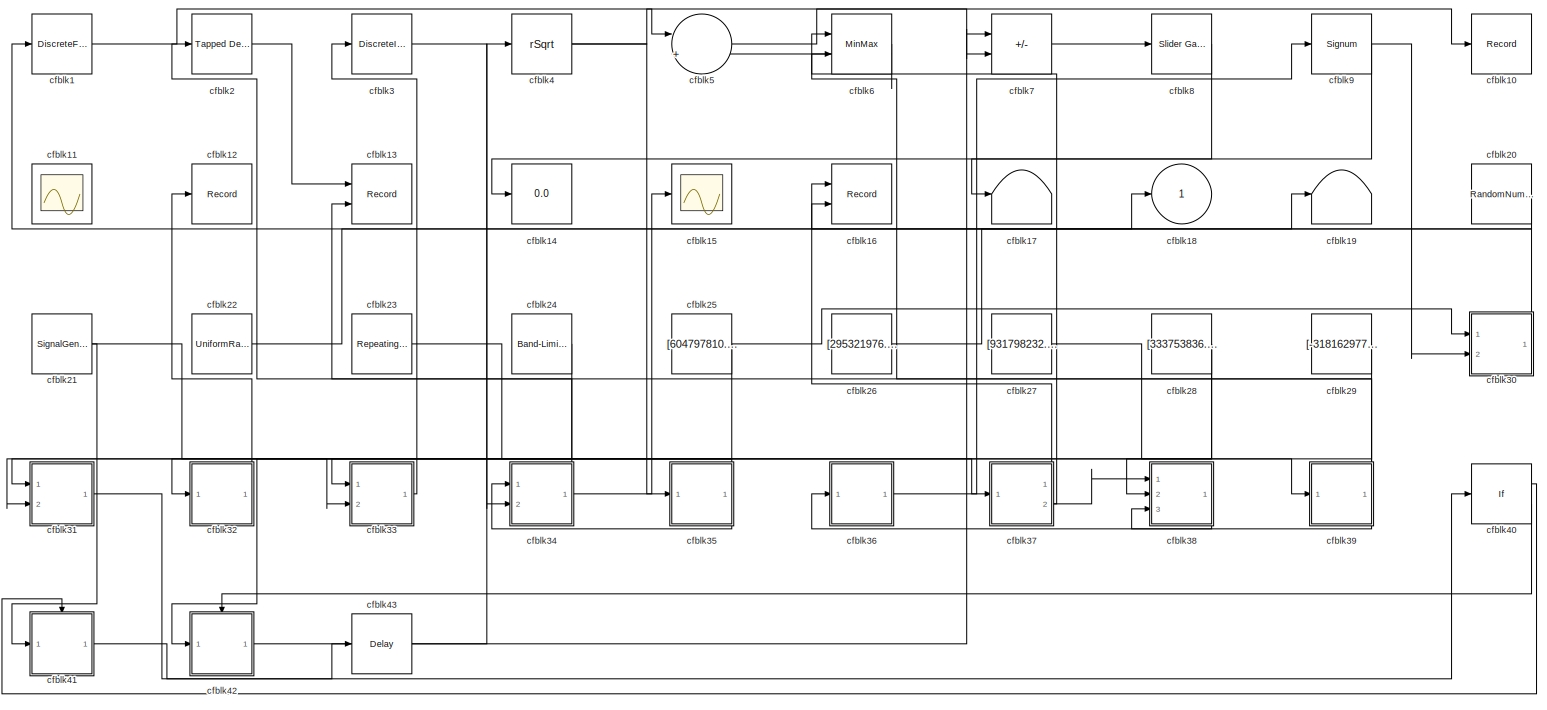
[diagram: root canvas - part 1/1, most of the canvas]
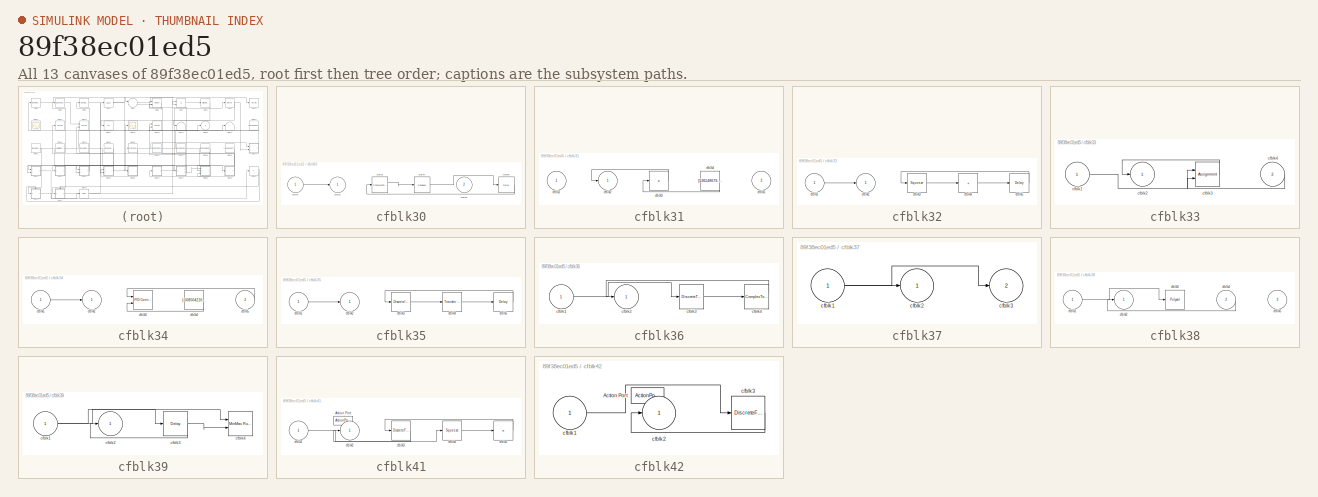
[diagram: thumbnail index - all 13 canvases of the model, root first then tree order]
MODEL slx_89f38ec01ed5
KIND model
CONFIG AbsTol = auto
CONFIG EnableMultiTasking = off
CONFIG FixedStep = auto
CONFIG MaxStep = auto
CONFIG MinStep = auto
CONFIG RelTol = 1e-3
CONFIG SampleTimeConstraint = Unconstrained
CONFIG SolverName = VariableStepAuto
CONFIG StartTime = 0.0
CONFIG StopTime = 10.0
BLOCK [DiscreteFir] cfblk1
  InputPortMap = u0
  OutputPortMap = o0
  Ports = [1, 1]
  SampleTime = 1
BLOCK [Record] cfblk10
  FileSettingsInternal = {"entries":[{"content":{"excelSettings":{"content":{},"type":"Streamout.ExcelSettings"}},"type":"Streamout.FileSettingStorage","uuid":"9136f186-ec9e-49fd-8053-90c4ae60cd6f"}],"packageUris":["http://schema.mathworks.com/mf0/streamout_blocks/R2020a"],"version":"1.0"}
  Ports = [1]
  SignalsInternal = {"entries":[{"content":{"signals":[{"content":{"blockPath":["sampleModel212/cfblk10"],"channel":[],"dimensions":[1],"domain":"sampleModel212/cfblk10","lineColor":"#edb120","plots":[1],"port":1,"sid":[""],"signalID":8232,"signalName":"cfblk5"},"type":"RecordBlkView.Signal","uuid":"3d6c6ed9-3216-4515-a2b3-ec71c8580300"}]},"type":"RecordBlkView.InputSignals","uuid":"6f53bf0b-d229-4304-8eb9-cf2f878992...<+96ch>
  VisualizationBindings = {"sparklinesplugin":{"info":[{"bindingParametersList":[],"subplotID":1}]}}
BLOCK [Scope] cfblk11
  Floating = on
  NumInputPorts = 1
  Ports = []
BLOCK [Record] cfblk12
  FileSettingsInternal = {"entries":[{"content":{"excelSettings":{"content":{},"type":"Streamout.ExcelSettings"}},"type":"Streamout.FileSettingStorage","uuid":"6ba16359-3d74-4ac6-a319-7b95d1bddcf9"}],"packageUris":["http://schema.mathworks.com/mf0/streamout_blocks/R2020a"],"version":"1.0"}
  Ports = [1]
  SignalsInternal = {"entries":[{"content":{"signals":[{"content":{"blockPath":["sampleModel212/cfblk12"],"channel":[],"dimensions":[1],"domain":"sampleModel212/cfblk12","lineColor":"#139fff","plots":[1],"port":1,"sid":[""],"signalID":8252,"signalName":"cfblk32"},"type":"RecordBlkView.Signal","uuid":"2d56ea30-9116-46ed-9e82-5e82888dbfa9"}]},"type":"RecordBlkView.InputSignals","uuid":"56d7414f-cbe6-4e07-9f56-36ce9f4fe...<+97ch>
  VisualizationBindings = {"sparklinesplugin":{"info":[{"bindingParametersList":[],"subplotID":1}]}}
BLOCK [Record] cfblk13
  CompatibilityTag = XY
  FileSettingsInternal = {"entries":[{"content":{"excelSettings":{"content":{},"type":"Streamout.ExcelSettings"}},"type":"Streamout.FileSettingStorage","uuid":"0acae2d6-ee60-4856-b366-a0806cd00a70"}],"packageUris":["http://schema.mathworks.com/mf0/streamout_blocks/R2020a"],"version":"1.0"}
  Layout = [1 1]
  Ports = [2]
  SignalsInternal = {"entries":[{"content":{"signals":[{"content":{"blockPath":["sampleModel212/cfblk13"],"channel":[],"dimensions":[1],"domain":"sampleModel212/cfblk13","lineColor":"#a2142f","plots":[1],"port":1,"sid":[""],"signalID":8236,"signalName":"cfblk2"},"type":"RecordBlkView.Signal","uuid":"529bd515-27fc-4e1a-94ea-2d07532aa9c1"},{"content":{"blockPath":["sampleModel212/cfblk13"],"channel":[],"dimensions":[1]...<+382ch>
  VisualizationBindings = {"xyplotplugin":{"info":[{"series":[{"bindingParametersList":[{"parameter":"X-Axis","signalID":8236,"signalName":"cfblk2"},{"parameter":"Y-Axis","signalID":8240,"signalName":"cfblk39"}],"seriesID":42465}],"subplotID":1}]}}
BLOCK [Display] cfblk14
  Decimation = 1
  Ports = [1]
BLOCK [Scope] cfblk15
  Floating = off
  NumInputPorts = 1
  Ports = [1]
BLOCK [Record] cfblk16
  CompatibilityTag = XY
  FileSettingsInternal = {"entries":[{"content":{"excelSettings":{"content":{},"type":"Streamout.ExcelSettings"}},"type":"Streamout.FileSettingStorage","uuid":"ca503a4a-a96d-43a1-9ebc-70d0128dd941"}],"packageUris":["http://schema.mathworks.com/mf0/streamout_blocks/R2020a"],"version":"1.0"}
  Layout = [1 1]
  Ports = [2]
  SignalsInternal = {"entries":[{"content":{"signals":[{"content":{"blockPath":["sampleModel212/cfblk16"],"channel":[],"dimensions":[1],"domain":"sampleModel212/cfblk16","lineColor":"#a2142f","plots":[1],"port":1,"sid":[""],"signalID":8244,"signalName":"cfblk37:1"},"type":"RecordBlkView.Signal","uuid":"e63eec24-58ba-4f65-805e-17e2aa971a90"},{"content":{"blockPath":["sampleModel212/cfblk16"],"channel":[],"dimensions":...<+385ch>
  VisualizationBindings = {"xyplotplugin":{"info":[{"series":[{"bindingParametersList":[{"parameter":"X-Axis","signalID":8244,"signalName":"cfblk37:1"},{"parameter":"Y-Axis","signalID":8248,"signalName":"cfblk20"}],"seriesID":43597}],"subplotID":1}]}}
BLOCK [Terminator] cfblk17
BLOCK [Outport] cfblk18
BLOCK [Terminator] cfblk19
BLOCK [Reference] cfblk2  REF=simulink/Discrete/Tapped Delay
  Ports = [1, 1]
  SourceBlock = simulink/Discrete/Tapped Delay
  SourceProductBaseCode = SL
  SourceType = Tapped Delay Line
BLOCK [RandomNumber] cfblk20
  Mean = [74771.324273]
  SampleTime = 0.1
  Seed = [211738287.000000]
  Variance = [43680.592014]
BLOCK [SignalGenerator] cfblk21
  Amplitude = [-349925656.261152]
  Ports = [0, 1]
  WaveForm = square
BLOCK [UniformRandomNumber] cfblk22
  Maximum = [1225243770.020049]
  Minimum = [-1543428115.464297]
  SampleTime = 0.1
  Seed = [69964703.000000]
BLOCK [Reference] cfblk23  REF=simulink/Sources/Repeating
Sequence
Interpolated
  Ports = [0, 1]
  SourceBlock = simulink/Sources/Repeating\nSequence\nInterpolated
  SourceProductBaseCode = SL
  SourceType = Repeating Sequence Interpolated
BLOCK [Reference] cfblk24  REF=simulink/Sources/Band-Limited
White Noise
  Ports = [0, 1]
  SourceBlock = simulink/Sources/Band-Limited\nWhite Noise
  SourceProductBaseCode = SL
  SourceType = Band-Limited White Noise.
BLOCK [Constant] cfblk25
  SampleTime = 1
  Value = [604797810.457834]
BLOCK [Constant] cfblk26
  SampleTime = 1
  Value = [295321976.553076]
BLOCK [Constant] cfblk27
  SampleTime = 1
  Value = [931798232.961089]
BLOCK [Constant] cfblk28
  SampleTime = 1
  Value = [333753836.550968]
BLOCK [Constant] cfblk29
  SampleTime = 1
  Value = [-318162977.426894]
BLOCK [DiscreteIntegrator] cfblk3
  ICPrevOutput = DiscIntNeverNeededParam
  ICPrevScaledInput = DiscIntNeverNeededParam
  InitialConditionSetting = Auto
  Ports = [1, 1]
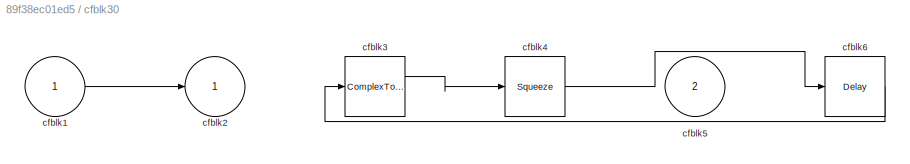
BLOCK [SubSystem] cfblk30
  Ports = [2, 1]
  RequestExecContextInheritance = off
BLOCK [Inport] cfblk30/cfblk1
BLOCK [Outport] cfblk30/cfblk2
BLOCK [ComplexToRealImag] cfblk30/cfblk3
  Ports = [1, 2]
BLOCK [Squeeze] cfblk30/cfblk4
BLOCK [Inport] cfblk30/cfblk5
  Port = 2
BLOCK [Delay] cfblk30/cfblk6
  InputPortMap = u0
  Ports = [1, 1]
  SampleTime = 1
BLOCK [SubSystem] cfblk31
  Ports = [2, 1]
  RequestExecContextInheritance = off
BLOCK [Inport] cfblk31/cfblk1
BLOCK [Outport] cfblk31/cfblk2
BLOCK [Product] cfblk31/cfblk3
  Inputs = *
  Ports = [1, 1]
BLOCK [Constant] cfblk31/cfblk4
  SampleTime = 1
  Value = [536548679.730514]
BLOCK [Inport] cfblk31/cfblk5
  Port = 2
BLOCK [SubSystem] cfblk32
  Ports = [1, 1]
  RequestExecContextInheritance = off
BLOCK [Inport] cfblk32/cfblk1
BLOCK [Outport] cfblk32/cfblk2
BLOCK [Squeeze] cfblk32/cfblk3
BLOCK [Sum] cfblk32/cfblk4
  IconShape = rectangular
  Inputs = +
  Ports = [1, 1]
BLOCK [Delay] cfblk32/cfblk5
  InputPortMap = u0
  Ports = [1, 1]
  SampleTime = 1
BLOCK [SubSystem] cfblk33
  Ports = [2, 1]
  RequestExecContextInheritance = off
BLOCK [Inport] cfblk33/cfblk1
BLOCK [Outport] cfblk33/cfblk2
BLOCK [Assignment] cfblk33/cfblk3
  DiagnosticForDimensions = Warning
  IndexOptions = Index vector (dialog)
  Indices = 1
  OutputSizes = 1
  Ports = [2, 1]
BLOCK [Inport] cfblk33/cfblk4
  Port = 2
BLOCK [SubSystem] cfblk34
  Ports = [2, 1]
  RequestExecContextInheritance = off
BLOCK [Inport] cfblk34/cfblk1
BLOCK [Outport] cfblk34/cfblk2
BLOCK [Reference] cfblk34/cfblk3  REF=slpidlib/PID Controller (2DOF)
  Ports = [2, 1]
  SourceBlock = slpidlib/PID Controller (2DOF)
  SourceProductBaseCode = SL
  SourceType = PID 2dof
BLOCK [Constant] cfblk34/cfblk4
  SampleTime = 1
  Value = [-508504210.317690]
BLOCK [Inport] cfblk34/cfblk5
  Port = 2
BLOCK [SubSystem] cfblk35
  Ports = [1, 1]
  RequestExecContextInheritance = off
BLOCK [Inport] cfblk35/cfblk1
BLOCK [Outport] cfblk35/cfblk2
BLOCK [DiscreteIntegrator] cfblk35/cfblk3
  ICPrevOutput = DiscIntNeverNeededParam
  ICPrevScaledInput = DiscIntNeverNeededParam
  InitialConditionSetting = Auto
  Ports = [1, 1]
BLOCK [Reference] cfblk35/cfblk4  REF=simulink/Discrete/Transfer Fcn
Real Zero
  Ports = [1, 1]
  SourceBlock = simulink/Discrete/Transfer Fcn\nReal Zero
  SourceProductBaseCode = SL
  SourceType = Transfer Fcn Real Zero
BLOCK [Delay] cfblk35/cfblk5
  InputPortMap = u0
  Ports = [1, 1]
  SampleTime = 1
BLOCK [SubSystem] cfblk36
  Ports = [1, 1]
  RequestExecContextInheritance = off
BLOCK [Inport] cfblk36/cfblk1
BLOCK [Outport] cfblk36/cfblk2
BLOCK [DiscreteTransferFcn] cfblk36/cfblk3
  InputPortMap = u0
  Ports = [1, 1]
  SampleTime = 1
BLOCK [ComplexToRealImag] cfblk36/cfblk4
  Ports = [1, 2]
BLOCK [SubSystem] cfblk37
  Ports = [1, 2]
  RequestExecContextInheritance = off
BLOCK [Inport] cfblk37/cfblk1
BLOCK [Outport] cfblk37/cfblk2
BLOCK [Outport] cfblk37/cfblk3
  Port = 2
BLOCK [SubSystem] cfblk38
  Ports = [3, 1]
  RequestExecContextInheritance = off
BLOCK [Inport] cfblk38/cfblk1
BLOCK [Outport] cfblk38/cfblk2
BLOCK [Polyval] cfblk38/cfblk3
  Coefs = [ +2.081618890e-019, -1.441693666e-014, +4.719686976e-010, -8.536869453e-006, +1.621573104e-001, -8.087801117e+001 ]
BLOCK [Inport] cfblk38/cfblk4
  Port = 2
BLOCK [Inport] cfblk38/cfblk5
  Port = 3
BLOCK [SubSystem] cfblk39
  Ports = [1, 1]
  RequestExecContextInheritance = off
BLOCK [Inport] cfblk39/cfblk1
BLOCK [Outport] cfblk39/cfblk2
BLOCK [Delay] cfblk39/cfblk3
  InputPortMap = u0
  Ports = [1, 1]
  SampleTime = 1
BLOCK [Reference] cfblk39/cfblk4  REF=simulink/Math
Operations/MinMax
Running
Resettable
  Ports = [2, 1]
  SourceBlock = simulink/Math\nOperations/MinMax\nRunning\nResettable
  SourceProductBaseCode = SL
  SourceType = MinMax Running Resettable
BLOCK [Sqrt] cfblk4
  AlgorithmType = Newton-Raphson
  Operator = rSqrt
BLOCK [If] cfblk40
  IfExpression = u1 >= 0
  Ports = [1, 2]
  SampleTime = 1
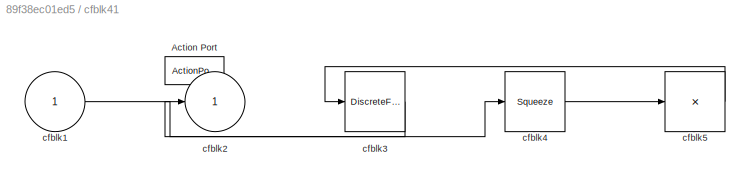
BLOCK [SubSystem] cfblk41
  Ports = [1, 1, 0, 0, 0, 0, 0, 1]
  RequestExecContextInheritance = off
  TreatAsAtomicUnit = on
BLOCK [ActionPort] cfblk41/Action Port
  ActionPortLabel = if(u1 >= 0)
BLOCK [Inport] cfblk41/cfblk1
BLOCK [Outport] cfblk41/cfblk2
BLOCK [DiscreteFilter] cfblk41/cfblk3
  InputPortMap = u0
  Ports = [1, 1]
BLOCK [Squeeze] cfblk41/cfblk4
BLOCK [Product] cfblk41/cfblk5
  Inputs = *
  Ports = [1, 1]
BLOCK [SubSystem] cfblk42
  Ports = [1, 1, 0, 0, 0, 0, 0, 1]
  RequestExecContextInheritance = off
  TreatAsAtomicUnit = on
BLOCK [ActionPort] cfblk42/Action Port
  ActionPortLabel = else
BLOCK [Inport] cfblk42/cfblk1
BLOCK [Outport] cfblk42/cfblk2
BLOCK [DiscreteFir] cfblk42/cfblk3
  InputPortMap = u0
  OutputPortMap = o0
  Ports = [1, 1]
BLOCK [Delay] cfblk43
  InputPortMap = u0
  Ports = [1, 1]
  SampleTime = 1
BLOCK [Sum] cfblk5
  Inputs = |++
  Ports = [2, 1]
BLOCK [MinMax] cfblk6
  Function = max
  Inputs = 2
  Ports = [2, 1]
BLOCK [Sum] cfblk7
  IconShape = rectangular
  Inputs = --
  Ports = [2, 1]
BLOCK [Reference] cfblk8  REF=simulink/Math
Operations/Slider
Gain
  Ports = [1, 1]
  SourceBlock = simulink/Math\nOperations/Slider\nGain
  SourceProductBaseCode = SL
  SourceType = Slider Gain
BLOCK [Signum] cfblk9
LINE cfblk1:1 -> cfblk5:1
LINE cfblk20:1 -> cfblk16:2
NET cfblk21:1 -> cfblk33:2, cfblk41:1
LINE cfblk22:1 -> cfblk18:1
LINE cfblk23:1 -> cfblk37:1
LINE cfblk24:1 -> cfblk42:1
NET cfblk25:1 -> cfblk30:1, cfblk33:1
LINE cfblk26:1 -> cfblk19:1
LINE cfblk27:1 -> cfblk39:1
NET cfblk28:1 -> cfblk31:2, cfblk38:2
LINE cfblk29:1 -> cfblk32:1
LINE cfblk2:1 -> cfblk13:1
LINE cfblk30/cfblk1:1 -> cfblk30/cfblk2:1
LINE cfblk30/cfblk3:1 -> cfblk30/cfblk4:1
LINE cfblk30/cfblk4:1 -> cfblk30/cfblk6:1
LINE cfblk30/cfblk6:1 -> cfblk30/cfblk3:1
LINE cfblk30:1 -> cfblk1:1
LINE cfblk31/cfblk3:1 -> cfblk31/cfblk2:1
LINE cfblk31/cfblk4:1 -> cfblk31/cfblk3:1
LINE cfblk31:1 -> cfblk40:1
LINE cfblk32/cfblk1:1 -> cfblk32/cfblk2:1
LINE cfblk32/cfblk3:1 -> cfblk32/cfblk4:1
LINE cfblk32/cfblk4:1 -> cfblk32/cfblk5:1
LINE cfblk32/cfblk5:1 -> cfblk32/cfblk3:1
LINE cfblk32:1 -> cfblk12:1
LINE cfblk33/cfblk1:1 -> cfblk33/cfblk3:1
LINE cfblk33/cfblk3:1 -> cfblk33/cfblk2:1
LINE cfblk33/cfblk4:1 -> cfblk33/cfblk3:2
LINE cfblk33:1 -> cfblk3:1
LINE cfblk34/cfblk1:1 -> cfblk34/cfblk2:1
LINE cfblk34/cfblk4:1 -> cfblk34/cfblk3:2
LINE cfblk34/cfblk5:1 -> cfblk34/cfblk3:1
NET cfblk34:1 -> cfblk15:1, cfblk2:1
LINE cfblk35/cfblk1:1 -> cfblk35/cfblk2:1
LINE cfblk35/cfblk3:1 -> cfblk35/cfblk4:1
LINE cfblk35/cfblk4:1 -> cfblk35/cfblk5:1
LINE cfblk35/cfblk5:1 -> cfblk35/cfblk3:1
NET cfblk35:1 -> cfblk31:1, cfblk34:1
LINE cfblk36/cfblk1:1 -> cfblk36/cfblk3:1
LINE cfblk36/cfblk3:1 -> cfblk36/cfblk4:1
LINE cfblk36/cfblk4:1 -> cfblk36/cfblk2:1
LINE cfblk36:1 -> cfblk9:1
NET cfblk37/cfblk1:1 -> cfblk37/cfblk2:1, cfblk37/cfblk3:1
LINE cfblk37:1 -> cfblk16:1
NET cfblk37:2 -> cfblk38:1, cfblk6:2
LINE cfblk38/cfblk1:1 -> cfblk38/cfblk3:1
LINE cfblk38/cfblk4:1 -> cfblk38/cfblk2:1
LINE cfblk38:1 -> cfblk36:1
NET cfblk39/cfblk1:1 -> cfblk39/cfblk3:1, cfblk39/cfblk4:1
NET cfblk39/cfblk3:1 -> cfblk39/cfblk2:1, cfblk39/cfblk4:2
NET cfblk39:1 -> cfblk13:2, cfblk38:3, cfblk6:1
LINE cfblk3:1 -> cfblk34:2
LINE cfblk40:1 -> cfblk41:ifaction
LINE cfblk40:2 -> cfblk42:ifaction
LINE cfblk41/cfblk1:1 -> cfblk41/cfblk4:1
LINE cfblk41/cfblk3:1 -> cfblk41/cfblk2:1
LINE cfblk41/cfblk4:1 -> cfblk41/cfblk5:1
LINE cfblk41/cfblk5:1 -> cfblk41/cfblk3:1
LINE cfblk41:1 -> cfblk43:1
LINE cfblk42/cfblk1:1 -> cfblk42/cfblk3:1
LINE cfblk42/cfblk3:1 -> cfblk42/cfblk2:1
LINE cfblk42:1 -> cfblk7:1
LINE cfblk43:1 -> cfblk4:1
NET cfblk4:1 -> cfblk35:1, cfblk7:2
LINE cfblk5:1 -> cfblk10:1
LINE cfblk6:1 -> cfblk5:2
LINE cfblk7:1 -> cfblk8:1
LINE cfblk8:1 -> cfblk14:1
NET cfblk9:1 -> cfblk17:1, cfblk30:2
note: NET lines group one-source signal fan-out (src -> all destinations, sorted); 1:1 wires keep LINE
